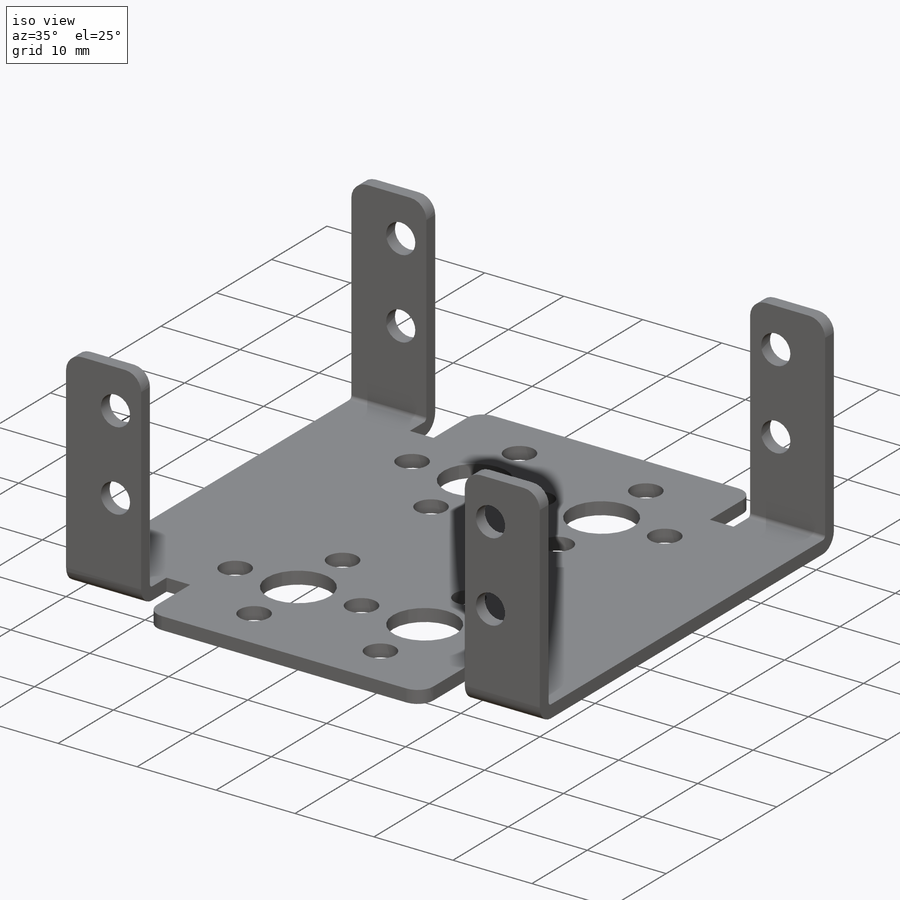
[diagram: iso view]
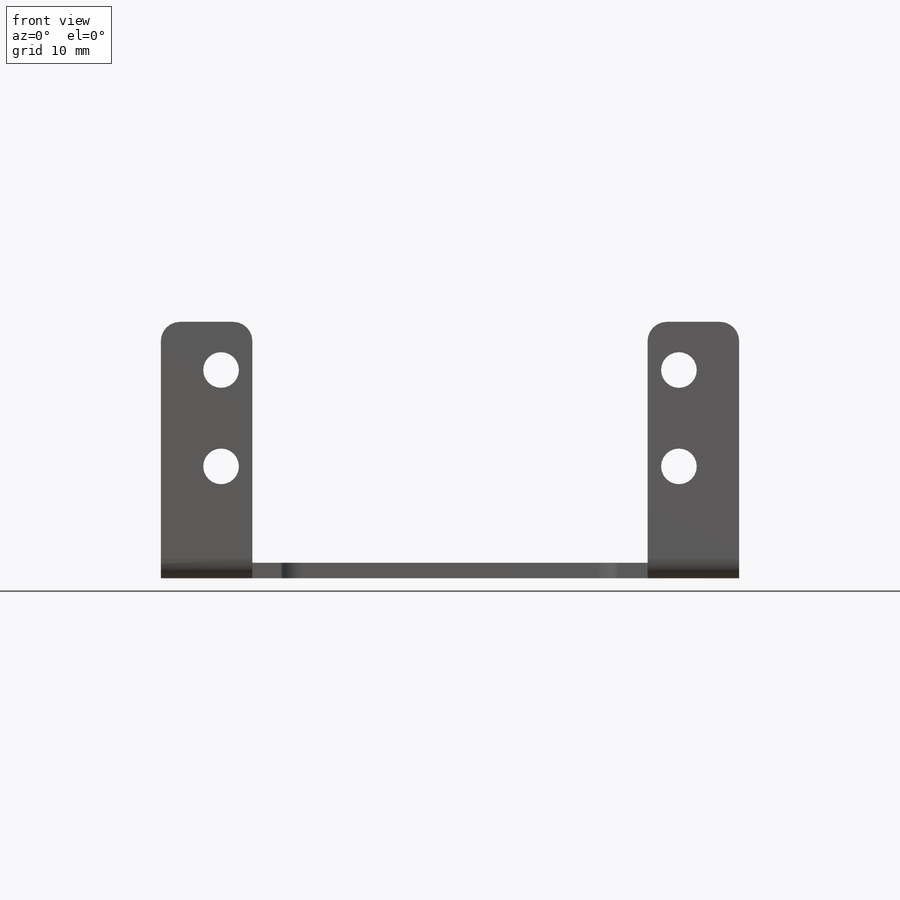
[diagram: front view]
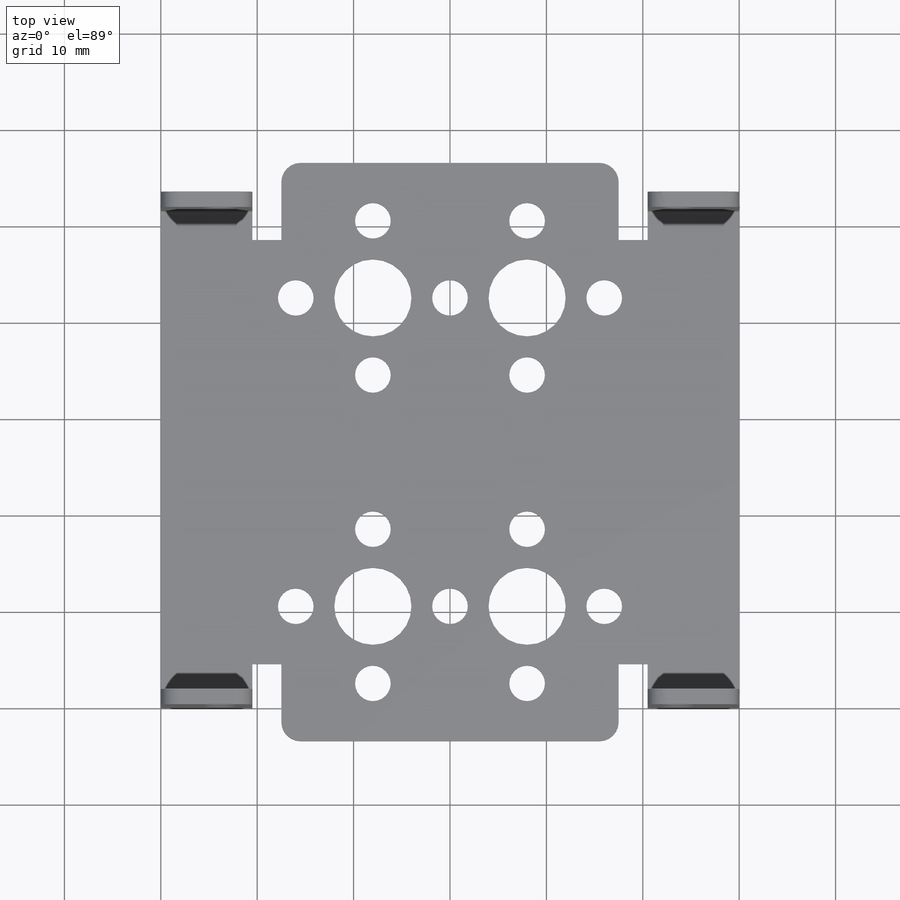
[diagram: top view]
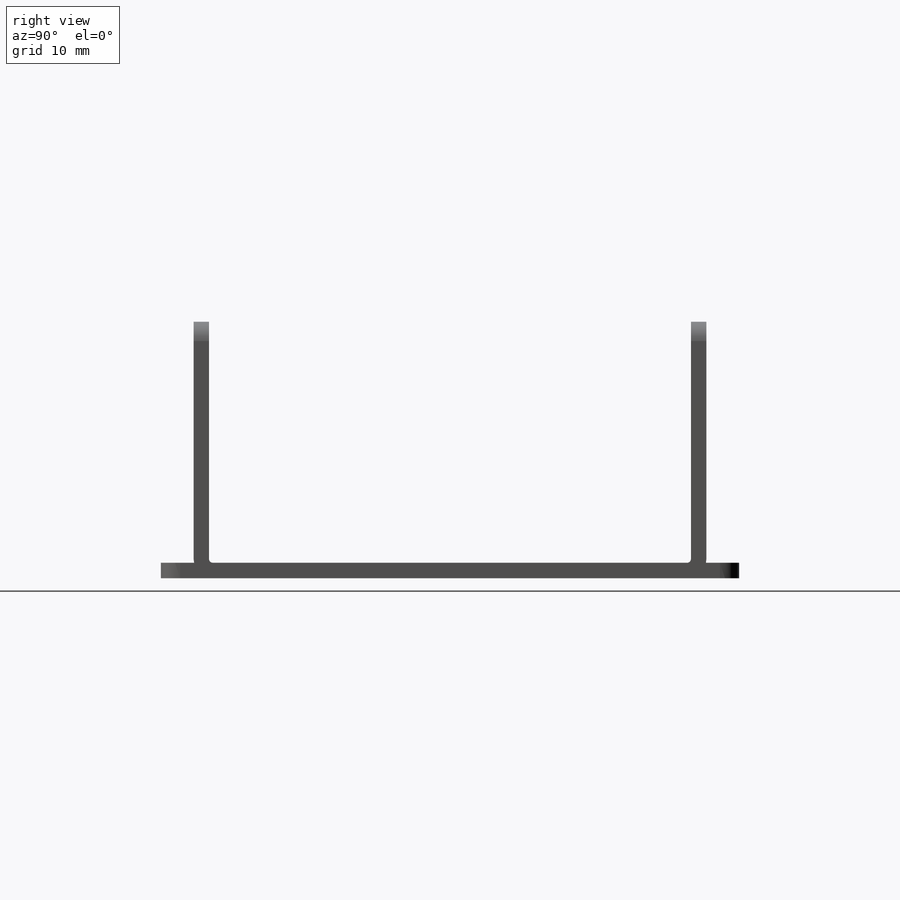
[diagram: right view]
SOLIDWORKS PART (.sldprt)
format: sldprt  version: not decoded by parser v0  size: 430,592 bytes
history: native  units: mm
features: sketch x17, extrude x8, hole x4, fillet x2, material x1, plane x1, cut_extrude x1 (+11 scaffold rows collapsed)
feature tree (45):
  scaffold x11  (default folders/planes/origin — collapsed)
  material  "2024 Alloy"
  plane  "Plane1"  Offset=60mm
  sketch  "Sketch1"
  extrude  "Boss-Extrude1"  Depth=9.5mm
  sketch  "Sketch2"
  cut_extrude  "Cut-Extrude1"  Depth=9.5mm
  sketch  "Sketch3"
  extrude  "Boss-Extrude2"  Depth=50.5mm
  sketch  "Sketch4"
  extrude  "Boss-Extrude3"  Depth=4.6mm
  sketch  "Sketch5"
  extrude  "Boss-Extrude4"  Depth=25mm
  sketch  "Sketch6"
  extrude  "Boss-Extrude5"  Depth=4.6mm
  sketch  "Sketch7"
  extrude  "Boss-Extrude6"  Depth=25mm
  sketch  "Sketch8"
  extrude  "Boss-Extrude7"  Depth=8mm
  sketch  "Sketch9"
  extrude  "Boss-Extrude8"  Depth=8mm
  hole  "Ø8.0 (8) Diameter Hole1"  Diameter=8mm Depth=26.6mm
  sketch  "Sketch11"
  sketch  "Sketch10"  dims[hole-wizard template sketch: 60 standard entries collapsed; hole parameters kept: c18.Thru Hole Depth=26.6mm]
  hole  "Ø3.7 (3.7) Diameter Hole1"  Diameter=3.7mm Depth=26.6mm
  sketch  "Sketch13"
  sketch  "Sketch12"  dims[hole-wizard template sketch: 60 standard entries collapsed; hole parameters kept: c18.Thru Hole Depth=26.6mm]
  hole  "Ø3.7 (3.7) Diameter Hole2"  Diameter=3.7mm Depth=1.6mm
  sketch  "Sketch15"
  sketch  "Sketch14"  dims[hole-wizard template sketch: 60 standard entries collapsed; hole parameters kept: c18.Thru Hole Depth=1.6mm]
  hole  "Ø3.7 (3.7) Diameter Hole3"  Diameter=3.7mm Depth=56.6mm
  sketch  "Sketch17"
  sketch  "Sketch16"  dims[hole-wizard template sketch: 60 standard entries collapsed; hole parameters kept: c18.Thru Hole Depth=56.6mm]
  fillet  "Fillet1"  Radius=0.4mm
  fillet  "Fillet2"  Radius=2mm
decode coverage: 19 of 32 modeling features carry decoded parameters
note: ~ marks probable driven/reference dimensions
summary: Diameter pulled from absorbed wizard sketch
note: suppression state not decoded; provenance and decode notes live in map.json
